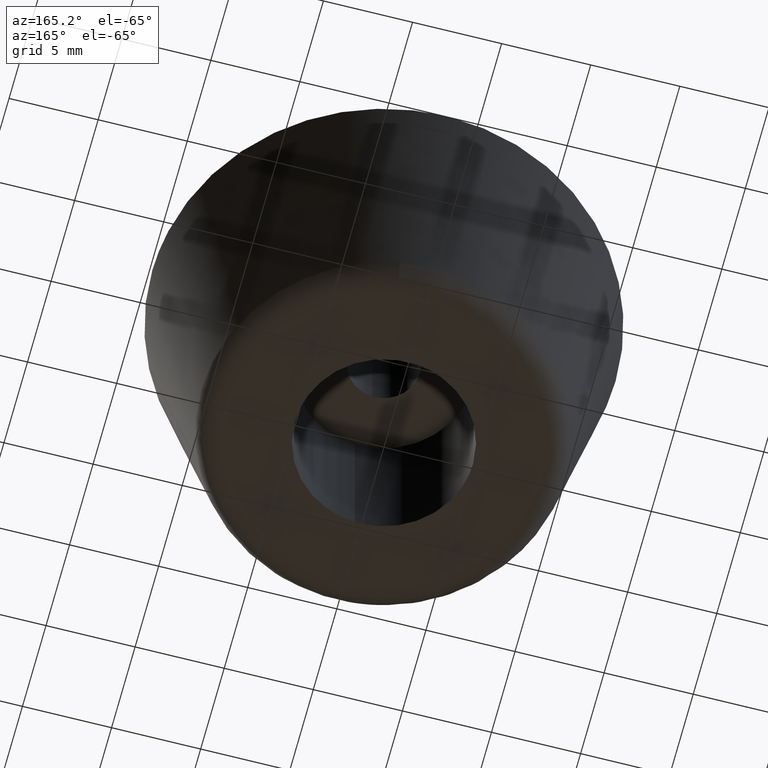
[diagram: clean part render]
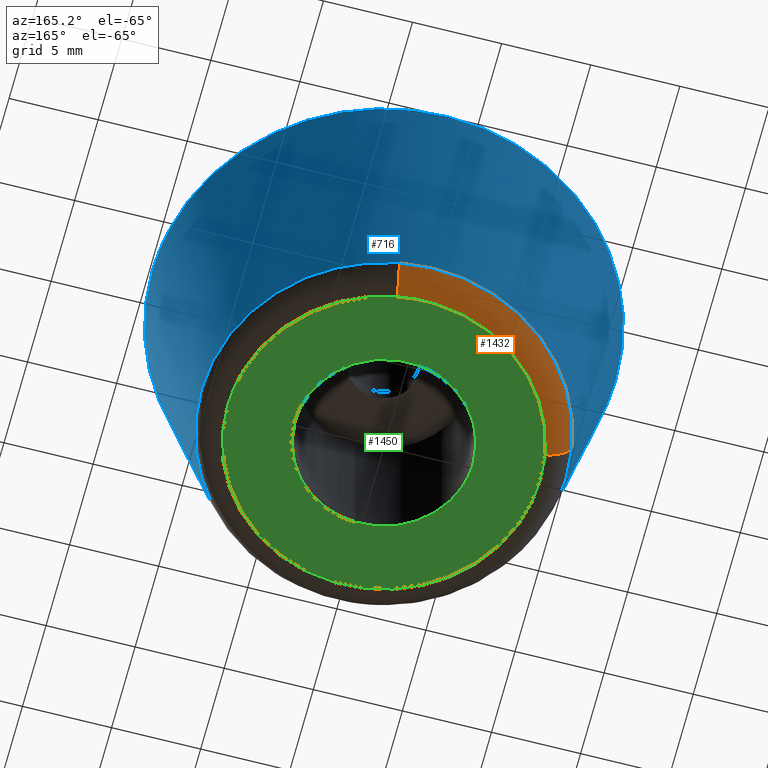
[diagram: same view with three faces highlighted in distinct colors, each labeled with its STEP entity id]
A machine part, auxiliary view with three faces highlighted in distinct colors.
Their STEP definitions:

[orange] entity #1432 — the highlighted face is a freeform B-spline surface patch.
#669=CARTESIAN_POINT('',(1.792434927976787,10.083086621414539,1.205825432428979));
#670=VERTEX_POINT('',#669);
#684=CARTESIAN_POINT('',(-10.083086621414539,1.792434927976787,1.205825432428979));
#685=VERTEX_POINT('',#684);
#686=CARTESIAN_POINT('',(-10.083086621414539,1.792434927976787,1.205825432428979));
#687=CARTESIAN_POINT('',(-8.581185610234368,10.241165000000002,1.205826000000000));
#688=CARTESIAN_POINT('',(0.0,10.241165000000001,1.205826000000000));
#689=CARTESIAN_POINT('',(0.903188086292772,10.241165000000001,1.205826000000000));
#690=CARTESIAN_POINT('',(1.792434927976787,10.083086621414539,1.205825432428979));
#698=(BOUNDED_CURVE()B_SPLINE_CURVE(2,(#686,#687,#688,#689,#690),.UNSPECIFIED.,.F.,.U.)B_SPLINE_CURVE_WITH_KNOTS((3,2,3),(0.030081663205693,0.250000000000000,0.280081663205693),.UNSPECIFIED.)CURVE()GEOMETRIC_REPRESENTATION_ITEM()RATIONAL_B_SPLINE_CURVE((0.937995589608244,0.742349641840858,1.0,0.964757139345690,0.937995589608244))REPRESENTATION_ITEM(''));
#699=EDGE_CURVE('',#685,#670,#698,.T.);
#1312=CARTESIAN_POINT('',(1.535003684122274,8.634918676224169,-9.869064E-014));
#1313=VERTEX_POINT('',#1312);
#1329=CARTESIAN_POINT('',(1.792434927976787,10.083086621414539,1.205825432428979));
#1330=CARTESIAN_POINT('',(1.750227965391735,9.845643329852724,3.426188E-009));
#1331=CARTESIAN_POINT('',(1.535003684122275,8.634918676224169,-9.869064E-014));
#1339=(BOUNDED_CURVE()B_SPLINE_CURVE(2,(#1329,#1330,#1331),.UNSPECIFIED.,.F.,.U.)B_SPLINE_CURVE_WITH_KNOTS((3,3),(-1.697274511608155,-0.292867638342641),.UNSPECIFIED.)CURVE()GEOMETRIC_REPRESENTATION_ITEM()RATIONAL_B_SPLINE_CURVE((0.894230889587813,0.692647608290811,0.897080811284892))REPRESENTATION_ITEM(''));
#1340=EDGE_CURVE('',#670,#1313,#1339,.T.);
#1347=CARTESIAN_POINT('',(-8.634918676224167,1.535003684122275,-9.948932E-014));
#1348=VERTEX_POINT('',#1347);
#1349=CARTESIAN_POINT('',(-10.083086621414539,1.792434927976787,1.205825432428979));
#1350=CARTESIAN_POINT('',(-9.845643329852720,1.750227965391736,3.426185E-009));
#1351=CARTESIAN_POINT('',(-8.634918676224167,1.535003684122275,-9.948932E-014));
#1359=(BOUNDED_CURVE()B_SPLINE_CURVE(2,(#1349,#1350,#1351),.UNSPECIFIED.,.F.,.U.)B_SPLINE_CURVE_WITH_KNOTS((3,3),(-1.697274511608155,-0.292867638342639),.UNSPECIFIED.)CURVE()GEOMETRIC_REPRESENTATION_ITEM()RATIONAL_B_SPLINE_CURVE((0.894230889587813,0.692647608290810,0.897080811284893))REPRESENTATION_ITEM(''));
#1360=EDGE_CURVE('',#685,#1348,#1359,.T.);
#1395=CARTESIAN_POINT('',(-10.098390118165488,1.795160628129167,1.298580781430022));
#1396=CARTESIAN_POINT('',(-8.303229490036324,11.893550746294657,1.298580781430021));
#1397=CARTESIAN_POINT('',(1.795160628129166,10.098390118165488,1.298580781430022));
#1398=CARTESIAN_POINT('',(-9.913901765287305,1.762364685057057,-0.084234275670708));
#1399=CARTESIAN_POINT('',(-8.151537080230250,11.676266450344363,-0.084234275670708));
#1400=CARTESIAN_POINT('',(1.762364685057056,9.913901765287305,-0.084234275670708));
#1401=CARTESIAN_POINT('',(-8.542671347608852,1.518605152190380,0.002929020183568));
#1402=CARTESIAN_POINT('',(-7.024066195418473,10.061276499799233,0.002929020183568));
#1403=CARTESIAN_POINT('',(1.518605152190380,8.542671347608852,0.002929020183568));
#1411=(BOUNDED_SURFACE()B_SPLINE_SURFACE(2,2,((#1395,#1398,#1401),(#1396,#1399,#1402),(#1397,#1400,#1403)),.UNSPECIFIED.,.F.,.F.,.U.)B_SPLINE_SURFACE_WITH_KNOTS((3,3),(3,3),(0.0,16.993872308318959),(0.0,2.359355043066953),.UNSPECIFIED.)GEOMETRIC_REPRESENTATION_ITEM()RATIONAL_B_SPLINE_SURFACE(((0.915382094769839,0.671354004922475,0.918516813981463),(0.647272886588500,0.474718969457429,0.649489467800155),(0.915382094769839,0.671354004922475,0.918516813981463)))REPRESENTATION_ITEM('')SURFACE());
#1412=CARTESIAN_POINT('',(-8.634918676224167,1.535003684122275,-9.948932E-014));
#1413=CARTESIAN_POINT('',(-7.348722741817030,8.770294000000000,-9.947598E-014));
#1414=CARTESIAN_POINT('',(0.0,8.770294000000000,-9.947598E-014));
#1415=CARTESIAN_POINT('',(0.773471364656526,8.770294000000000,-9.947598E-014));
#1416=CARTESIAN_POINT('',(1.535003684122274,8.634918676224169,-9.869064E-014));
#1424=(BOUNDED_CURVE()B_SPLINE_CURVE(2,(#1412,#1413,#1414,#1415,#1416),.UNSPECIFIED.,.F.,.U.)B_SPLINE_CURVE_WITH_KNOTS((3,2,3),(0.030081746791301,0.250000000000000,0.280081746791301),.UNSPECIFIED.)CURVE()GEOMETRIC_REPRESENTATION_ITEM()RATIONAL_B_SPLINE_CURVE((0.937995440887782,0.742349739767489,1.0,0.964757041419058,0.937995440887782))REPRESENTATION_ITEM(''));
#1425=EDGE_CURVE('',#1348,#1313,#1424,.T.);
#1426=ORIENTED_EDGE('',*,*,#1425,.F.);
#1427=ORIENTED_EDGE('',*,*,#1360,.F.);
#1428=ORIENTED_EDGE('',*,*,#699,.T.);
#1429=ORIENTED_EDGE('',*,*,#1340,.T.);
#1430=EDGE_LOOP('',(#1426,#1427,#1428,#1429));
#1431=FACE_OUTER_BOUND('',#1430,.T.);
#1432=ADVANCED_FACE('',(#1431),#1411,.T.);

[blue] entity #716 — the highlighted face is a freeform B-spline surface patch.
#515=CARTESIAN_POINT('',(0.803503832522441,-10.209594695141870,1.205821530488537));
#516=VERTEX_POINT('',#515);
#517=CARTESIAN_POINT('',(-9.522895761693491,-3.767744883117235,1.205822249237394));
#518=VERTEX_POINT('',#517);
#534=CARTESIAN_POINT('',(1.019960730702716,-12.959925147633779,14.999996100865930));
#535=VERTEX_POINT('',#534);
#536=CARTESIAN_POINT('',(0.803503832522441,-10.209594695141870,1.205821530488537));
#537=CARTESIAN_POINT('',(1.019960730702716,-12.959925147633779,14.999996100865930));
#538=QUASI_UNIFORM_CURVE('',1,(#536,#537),.UNSPECIFIED.,.F.,.U.);
#539=EDGE_CURVE('',#516,#535,#538,.T.);
#541=CARTESIAN_POINT('',(-12.088238353496781,-4.782726349463784,14.999995735543790));
#542=VERTEX_POINT('',#541);
#558=CARTESIAN_POINT('',(-9.522895761693491,-3.767744883117235,1.205822249237394));
#559=CARTESIAN_POINT('',(-12.088238353496781,-4.782726349463784,14.999995735543790));
#560=QUASI_UNIFORM_CURVE('',1,(#558,#559),.UNSPECIFIED.,.F.,.U.);
#561=EDGE_CURVE('',#518,#542,#560,.T.);
#566=CARTESIAN_POINT('',(0.798101143486724,-10.140836529317379,0.860971068239703));
#567=CARTESIAN_POINT('',(10.938937672804100,-9.342735385830652,0.860971068239703));
#568=CARTESIAN_POINT('',(10.140836529317379,0.798101143486724,0.860971068239703));
#569=CARTESIAN_POINT('',(9.342735385830652,10.938937672804100,0.860971068239703));
#570=CARTESIAN_POINT('',(-0.798101143486724,10.140836529317379,0.860971068239703));
#571=CARTESIAN_POINT('',(-10.938937672804100,9.342735385830652,0.860971068239703));
#572=CARTESIAN_POINT('',(-10.140836529317379,-0.798101143486724,0.860971068239703));
#573=CARTESIAN_POINT('',(-10.020944893782833,-2.321468810743471,0.860971068239703));
#574=CARTESIAN_POINT('',(-9.458761279695821,-3.742374380430099,0.860971068239703));
#575=CARTESIAN_POINT('',(1.025514921986374,-13.030402558760990,15.353475723294009));
#576=CARTESIAN_POINT('',(14.055917480747365,-12.004887636774617,15.353475723294013));
#577=CARTESIAN_POINT('',(13.030402558760990,1.025514921986374,15.353475723294009));
#578=CARTESIAN_POINT('',(12.004887636774617,14.055917480747365,15.353475723294013));
#579=CARTESIAN_POINT('',(-1.025514921986374,13.030402558760990,15.353475723294009));
#580=CARTESIAN_POINT('',(-14.055917480747365,12.004887636774617,15.353475723294013));
#581=CARTESIAN_POINT('',(-13.030402558760990,-1.025514921986374,15.353475723294009));
#582=CARTESIAN_POINT('',(-12.876348574168407,-2.982956390643230,15.353475723294006));
#583=CARTESIAN_POINT('',(-12.153974361516937,-4.808739847212635,15.353475723294007));
#591=(BOUNDED_SURFACE()B_SPLINE_SURFACE(2,1,((#566,#575),(#567,#576),(#568,#577),(#569,#578),(#570,#579),(#571,#580),(#572,#581),(#573,#582),(#574,#583)),.UNSPECIFIED.,.F.,.F.,.U.)B_SPLINE_SURFACE_WITH_KNOTS((3,2,2,2,3),(2,2),(0.0,21.656236802738729,43.312473605477450,64.968710408216182,69.299957768763932),(0.0,14.779512848600151),.UNSPECIFIED.)GEOMETRIC_REPRESENTATION_ITEM()RATIONAL_B_SPLINE_SURFACE(((1.0,1.0),(0.707106781186548,0.707106781186548),(1.0,1.0),(0.707106781186548,0.707106781186548),(1.0,1.0),(0.707106781186548,0.707106781186548),(1.0,1.0),(0.941421356237310,0.941421356237310),(0.906274169979695,0.906274169979695)))REPRESENTATION_ITEM('')SURFACE());
#592=CARTESIAN_POINT('',(-10.241165000000001,0.0,1.205826000000000));
#593=VERTEX_POINT('',#592);
#594=CARTESIAN_POINT('',(-9.522895761693491,-3.767744883117235,1.205822249237394));
#595=CARTESIAN_POINT('',(-10.241164651229465,-1.952336426630331,1.205824124618697));
#596=CARTESIAN_POINT('',(-10.241165000000001,0.0,1.205826000000000));
#604=(BOUNDED_CURVE()B_SPLINE_CURVE(2,(#594,#595,#596),.UNSPECIFIED.,.F.,.U.)B_SPLINE_CURVE_WITH_KNOTS((3,3),(0.937532612952534,1.0),.UNSPECIFIED.)CURVE()GEOMETRIC_REPRESENTATION_ITEM()RATIONAL_B_SPLINE_CURVE((0.890203261364250,0.926814903747208,1.0))REPRESENTATION_ITEM(''));
#605=EDGE_CURVE('',#518,#593,#604,.T.);
#606=ORIENTED_EDGE('',*,*,#605,.F.);
#607=ORIENTED_EDGE('',*,*,#561,.T.);
#608=CARTESIAN_POINT('',(-13.0,0.0,15.0));
#609=VERTEX_POINT('',#608);
#610=CARTESIAN_POINT('',(-12.088238353496774,-4.782726349463784,14.999995735543795));
#611=CARTESIAN_POINT('',(-12.999999603462925,-2.478270488527844,14.999997867771894));
#612=CARTESIAN_POINT('',(-13.0,0.0,15.0));
#620=(BOUNDED_CURVE()B_SPLINE_CURVE(2,(#610,#611,#612),.UNSPECIFIED.,.F.,.U.)B_SPLINE_CURVE_WITH_KNOTS((3,3),(0.937532605529080,1.0),.UNSPECIFIED.)CURVE()GEOMETRIC_REPRESENTATION_ITEM()RATIONAL_B_SPLINE_CURVE((0.890203252662594,0.926814895050091,1.0))REPRESENTATION_ITEM(''));
#621=EDGE_CURVE('',#542,#609,#620,.T.);
#622=ORIENTED_EDGE('',*,*,#621,.T.);
#623=CARTESIAN_POINT('',(13.0,0.0,15.0));
#624=VERTEX_POINT('',#623);
#625=CARTESIAN_POINT('',(-13.0,0.0,15.0));
#626=CARTESIAN_POINT('',(-13.0,13.0,14.999999999999996));
#627=CARTESIAN_POINT('',(0.0,13.0,15.0));
#628=CARTESIAN_POINT('',(13.0,13.0,14.999999999999996));
#629=CARTESIAN_POINT('',(13.0,0.0,15.0));
#637=(BOUNDED_CURVE()B_SPLINE_CURVE(2,(#625,#626,#627,#628,#629),.UNSPECIFIED.,.F.,.U.)B_SPLINE_CURVE_WITH_KNOTS((3,2,3),(0.0,0.250000000000000,0.500000000000000),.UNSPECIFIED.)CURVE()GEOMETRIC_REPRESENTATION_ITEM()RATIONAL_B_SPLINE_CURVE((1.0,0.707106781186547,1.0,0.707106781186547,1.0))REPRESENTATION_ITEM(''));
#638=EDGE_CURVE('',#609,#624,#637,.T.);
#639=ORIENTED_EDGE('',*,*,#638,.T.);
#640=CARTESIAN_POINT('',(13.0,0.0,15.0));
#641=CARTESIAN_POINT('',(12.999999969407883,-12.017082934606062,14.999998050432970));
#642=CARTESIAN_POINT('',(1.019960730702716,-12.959925147633777,14.999996100865921));
#650=(BOUNDED_CURVE()B_SPLINE_CURVE(2,(#640,#641,#642),.UNSPECIFIED.,.F.,.U.)B_SPLINE_CURVE_WITH_KNOTS((3,3),(0.500000000000000,0.736331399210031),.UNSPECIFIED.)CURVE()GEOMETRIC_REPRESENTATION_ITEM()RATIONAL_B_SPLINE_CURVE((1.0,0.723120543114748,0.969723561895137))REPRESENTATION_ITEM(''));
#651=EDGE_CURVE('',#624,#535,#650,.T.);
#652=ORIENTED_EDGE('',*,*,#651,.T.);
#653=ORIENTED_EDGE('',*,*,#539,.F.);
#654=CARTESIAN_POINT('',(10.241165000000001,0.0,1.205826000000000));
#655=VERTEX_POINT('',#654);
#656=CARTESIAN_POINT('',(10.241165000000001,0.0,1.205826000000000));
#657=CARTESIAN_POINT('',(10.241164964932851,-9.466843142405997,1.205823765244268));
#658=CARTESIAN_POINT('',(0.803503832522441,-10.209594695141874,1.205821530488537));
#666=(BOUNDED_CURVE()B_SPLINE_CURVE(2,(#656,#657,#658),.UNSPECIFIED.,.F.,.U.)B_SPLINE_CURVE_WITH_KNOTS((3,3),(0.500000000000000,0.736331445743965),.UNSPECIFIED.)CURVE()GEOMETRIC_REPRESENTATION_ITEM()RATIONAL_B_SPLINE_CURVE((1.0,0.723120488596853,0.969723659008014))REPRESENTATION_ITEM(''));
#667=EDGE_CURVE('',#655,#516,#666,.T.);
#668=ORIENTED_EDGE('',*,*,#667,.F.);
#669=CARTESIAN_POINT('',(1.792434927976787,10.083086621414539,1.205825432428979));
#670=VERTEX_POINT('',#669);
#671=CARTESIAN_POINT('',(1.792434927976787,10.083086621414539,1.205825432428979));
#672=CARTESIAN_POINT('',(10.241165000000002,8.581185610234368,1.205826000000000));
#673=CARTESIAN_POINT('',(10.241165000000001,0.0,1.205826000000000));
#681=(BOUNDED_CURVE()B_SPLINE_CURVE(2,(#671,#672,#673),.UNSPECIFIED.,.F.,.U.)B_SPLINE_CURVE_WITH_KNOTS((3,3),(0.280081663205693,0.500000000000000),.UNSPECIFIED.)CURVE()GEOMETRIC_REPRESENTATION_ITEM()RATIONAL_B_SPLINE_CURVE((0.937995589608244,0.742349641840858,1.0))REPRESENTATION_ITEM(''));
#682=EDGE_CURVE('',#670,#655,#681,.T.);
#683=ORIENTED_EDGE('',*,*,#682,.F.);
#684=CARTESIAN_POINT('',(-10.083086621414539,1.792434927976787,1.205825432428979));
#685=VERTEX_POINT('',#684);
#686=CARTESIAN_POINT('',(-10.083086621414539,1.792434927976787,1.205825432428979));
#687=CARTESIAN_POINT('',(-8.581185610234368,10.241165000000002,1.205826000000000));
#688=CARTESIAN_POINT('',(0.0,10.241165000000001,1.205826000000000));
#689=CARTESIAN_POINT('',(0.903188086292772,10.241165000000001,1.205826000000000));
#690=CARTESIAN_POINT('',(1.792434927976787,10.083086621414539,1.205825432428979));
#698=(BOUNDED_CURVE()B_SPLINE_CURVE(2,(#686,#687,#688,#689,#690),.UNSPECIFIED.,.F.,.U.)B_SPLINE_CURVE_WITH_KNOTS((3,2,3),(0.030081663205693,0.250000000000000,0.280081663205693),.UNSPECIFIED.)CURVE()GEOMETRIC_REPRESENTATION_ITEM()RATIONAL_B_SPLINE_CURVE((0.937995589608244,0.742349641840858,1.0,0.964757139345690,0.937995589608244))REPRESENTATION_ITEM(''));
#699=EDGE_CURVE('',#685,#670,#698,.T.);
#700=ORIENTED_EDGE('',*,*,#699,.F.);
#701=CARTESIAN_POINT('',(-10.241165000000001,0.0,1.205826000000000));
#702=CARTESIAN_POINT('',(-10.241164999999999,0.903188086292771,1.205826000000000));
#703=CARTESIAN_POINT('',(-10.083086621414539,1.792434927976787,1.205825432428979));
#711=(BOUNDED_CURVE()B_SPLINE_CURVE(2,(#701,#702,#703),.UNSPECIFIED.,.F.,.U.)B_SPLINE_CURVE_WITH_KNOTS((3,3),(0.0,0.030081663205693),.UNSPECIFIED.)CURVE()GEOMETRIC_REPRESENTATION_ITEM()RATIONAL_B_SPLINE_CURVE((1.0,0.964757139345690,0.937995589608244))REPRESENTATION_ITEM(''));
#712=EDGE_CURVE('',#593,#685,#711,.T.);
#713=ORIENTED_EDGE('',*,*,#712,.F.);
#714=EDGE_LOOP('',(#606,#607,#622,#639,#652,#653,#668,#683,#700,#713));
#715=FACE_OUTER_BOUND('',#714,.T.);
#716=ADVANCED_FACE('',(#715),#591,.T.);

[green] entity #1450 — the highlighted face is a freeform B-spline surface patch.
#1119=CARTESIAN_POINT('',(-0.590164254953731,4.965048454156954,2.889118E-014));
#1120=VERTEX_POINT('',#1119);
#1121=CARTESIAN_POINT('',(5.0,0.0,0.0));
#1122=VERTEX_POINT('',#1121);
#1123=CARTESIAN_POINT('',(-0.590164254953731,4.965048454156954,2.889118E-014));
#1124=CARTESIAN_POINT('',(-0.296117102525392,5.0,0.0));
#1125=CARTESIAN_POINT('',(0.0,5.0,0.0));
#1126=CARTESIAN_POINT('',(5.000000000000001,5.000000000000001,0.0));
#1127=CARTESIAN_POINT('',(5.0,0.0,0.0));
#1135=(BOUNDED_CURVE()B_SPLINE_CURVE(2,(#1123,#1124,#1125,#1126,#1127),.UNSPECIFIED.,.F.,.U.)B_SPLINE_CURVE_WITH_KNOTS((3,2,3),(0.229562709005904,0.250000000000000,0.500000000000000),.UNSPECIFIED.)CURVE()GEOMETRIC_REPRESENTATION_ITEM()RATIONAL_B_SPLINE_CURVE((0.956027215758951,0.976056224227648,1.0,0.707106781186548,1.0))REPRESENTATION_ITEM(''));
#1136=EDGE_CURVE('',#1120,#1122,#1135,.T.);
#1138=CARTESIAN_POINT('',(0.305239861892635,-4.990674165551553,-7.258083E-015));
#1139=VERTEX_POINT('',#1138);
#1140=CARTESIAN_POINT('',(5.0,0.0,0.0));
#1141=CARTESIAN_POINT('',(4.999999999999999,-4.703533012145370,0.0));
#1142=CARTESIAN_POINT('',(0.305239861892635,-4.990674165551553,-7.258083E-015));
#1150=(BOUNDED_CURVE()B_SPLINE_CURVE(2,(#1140,#1141,#1142),.UNSPECIFIED.,.F.,.U.)B_SPLINE_CURVE_WITH_KNOTS((3,3),(0.500000000000000,0.739333060285851),.UNSPECIFIED.)CURVE()GEOMETRIC_REPRESENTATION_ITEM()RATIONAL_B_SPLINE_CURVE((1.0,0.719603878417612,0.976072251799996))REPRESENTATION_ITEM(''));
#1151=EDGE_CURVE('',#1122,#1139,#1150,.T.);
#1218=CARTESIAN_POINT('',(-5.0,0.0,0.0));
#1219=VERTEX_POINT('',#1218);
#1220=CARTESIAN_POINT('',(-5.0,0.0,0.0));
#1221=CARTESIAN_POINT('',(-5.000000000000001,4.440878861261977,0.0));
#1222=CARTESIAN_POINT('',(-0.590164254953731,4.965048454156953,2.889118E-014));
#1230=(BOUNDED_CURVE()B_SPLINE_CURVE(2,(#1220,#1221,#1222),.UNSPECIFIED.,.F.,.U.)B_SPLINE_CURVE_WITH_KNOTS((3,3),(0.0,0.229562709005904),.UNSPECIFIED.)CURVE()GEOMETRIC_REPRESENTATION_ITEM()RATIONAL_B_SPLINE_CURVE((1.0,0.731050556958900,0.956027215758951))REPRESENTATION_ITEM(''));
#1231=EDGE_CURVE('',#1219,#1120,#1230,.T.);
#1265=CARTESIAN_POINT('',(0.305239861892635,-4.990674165551553,-7.258083E-015));
#1266=CARTESIAN_POINT('',(0.152762394626554,-5.000000000000001,0.0));
#1267=CARTESIAN_POINT('',(0.0,-5.0,0.0));
#1268=CARTESIAN_POINT('',(-5.000000000000001,-5.000000000000001,0.0));
#1269=CARTESIAN_POINT('',(-5.0,0.0,0.0));
#1277=(BOUNDED_CURVE()B_SPLINE_CURVE(2,(#1265,#1266,#1267,#1268,#1269),.UNSPECIFIED.,.F.,.U.)B_SPLINE_CURVE_WITH_KNOTS((3,2,3),(0.739333060285851,0.750000000000000,1.0),.UNSPECIFIED.)CURVE()GEOMETRIC_REPRESENTATION_ITEM()RATIONAL_B_SPLINE_CURVE((0.976072251799996,0.987502902768935,1.0,0.707106781186548,1.0))REPRESENTATION_ITEM(''));
#1278=EDGE_CURVE('',#1139,#1219,#1277,.T.);
#1312=CARTESIAN_POINT('',(1.535003684122274,8.634918676224169,-9.869064E-014));
#1313=VERTEX_POINT('',#1312);
#1314=CARTESIAN_POINT('',(8.770294000000000,0.0,0.0));
#1315=VERTEX_POINT('',#1314);
#1316=CARTESIAN_POINT('',(1.535003684122275,8.634918676224167,-9.869064E-014));
#1317=CARTESIAN_POINT('',(8.770294000000000,7.348722741817030,-8.335199E-014));
#1318=CARTESIAN_POINT('',(8.770294000000000,0.0,0.0));
#1326=(BOUNDED_CURVE()B_SPLINE_CURVE(2,(#1316,#1317,#1318),.UNSPECIFIED.,.F.,.U.)B_SPLINE_CURVE_WITH_KNOTS((3,3),(0.280081746791301,0.500000000000000),.UNSPECIFIED.)CURVE()GEOMETRIC_REPRESENTATION_ITEM()RATIONAL_B_SPLINE_CURVE((0.937995440887782,0.742349739767489,1.0))REPRESENTATION_ITEM(''));
#1327=EDGE_CURVE('',#1313,#1315,#1326,.T.);
#1347=CARTESIAN_POINT('',(-8.634918676224167,1.535003684122275,-9.948932E-014));
#1348=VERTEX_POINT('',#1347);
#1362=CARTESIAN_POINT('',(-8.770294000000000,0.0,-9.947598E-014));
#1363=VERTEX_POINT('',#1362);
#1364=CARTESIAN_POINT('',(-8.770294000000000,0.0,-9.947598E-014));
#1365=CARTESIAN_POINT('',(-8.770294000000000,0.773471364656523,-9.947598E-014));
#1366=CARTESIAN_POINT('',(-8.634918676224167,1.535003684122275,-9.948932E-014));
#1374=(BOUNDED_CURVE()B_SPLINE_CURVE(2,(#1364,#1365,#1366),.UNSPECIFIED.,.F.,.U.)B_SPLINE_CURVE_WITH_KNOTS((3,3),(0.0,0.030081746791301),.UNSPECIFIED.)CURVE()GEOMETRIC_REPRESENTATION_ITEM()RATIONAL_B_SPLINE_CURVE((1.0,0.964757041419058,0.937995440887782))REPRESENTATION_ITEM(''));
#1375=EDGE_CURVE('',#1363,#1348,#1374,.T.);
#1377=CARTESIAN_POINT('',(8.770294000000000,0.0,0.0));
#1378=CARTESIAN_POINT('',(8.770294000000000,-8.770294000000000,-9.947598E-014));
#1379=CARTESIAN_POINT('',(0.0,-8.770294000000000,-9.947598E-014));
#1380=CARTESIAN_POINT('',(-8.770294000000000,-8.770294000000000,-9.947598E-014));
#1381=CARTESIAN_POINT('',(-8.770294000000000,0.0,-9.947598E-014));
#1389=(BOUNDED_CURVE()B_SPLINE_CURVE(2,(#1377,#1378,#1379,#1380,#1381),.UNSPECIFIED.,.F.,.U.)B_SPLINE_CURVE_WITH_KNOTS((3,2,3),(0.500000000000000,0.750000000000000,1.0),.UNSPECIFIED.)CURVE()GEOMETRIC_REPRESENTATION_ITEM()RATIONAL_B_SPLINE_CURVE((1.0,0.707106781186548,1.0,0.707106781186548,1.0))REPRESENTATION_ITEM(''));
#1390=EDGE_CURVE('',#1315,#1363,#1389,.T.);
#1412=CARTESIAN_POINT('',(-8.634918676224167,1.535003684122275,-9.948932E-014));
#1413=CARTESIAN_POINT('',(-7.348722741817030,8.770294000000000,-9.947598E-014));
#1414=CARTESIAN_POINT('',(0.0,8.770294000000000,-9.947598E-014));
#1415=CARTESIAN_POINT('',(0.773471364656526,8.770294000000000,-9.947598E-014));
#1416=CARTESIAN_POINT('',(1.535003684122274,8.634918676224169,-9.869064E-014));
#1424=(BOUNDED_CURVE()B_SPLINE_CURVE(2,(#1412,#1413,#1414,#1415,#1416),.UNSPECIFIED.,.F.,.U.)B_SPLINE_CURVE_WITH_KNOTS((3,2,3),(0.030081746791301,0.250000000000000,0.280081746791301),.UNSPECIFIED.)CURVE()GEOMETRIC_REPRESENTATION_ITEM()RATIONAL_B_SPLINE_CURVE((0.937995440887782,0.742349739767489,1.0,0.964757041419058,0.937995440887782))REPRESENTATION_ITEM(''));
#1425=EDGE_CURVE('',#1348,#1313,#1424,.T.);
#1433=CARTESIAN_POINT('',(-9.646446665919914,-9.646368840829036,-4.973799E-014));
#1434=CARTESIAN_POINT('',(9.646446822744993,-9.646368840829036,-4.973799E-014));
#1435=CARTESIAN_POINT('',(-9.646446665919914,9.644810938288009,-4.973799E-014));
#1436=CARTESIAN_POINT('',(9.646446822744993,9.644810938288009,-4.973799E-014));
#1437=B_SPLINE_SURFACE_WITH_KNOTS('',1,1,((#1433,#1435),(#1434,#1436)),.UNSPECIFIED.,.F.,.F.,.U.,(2,2),(2,2),(0.0,19.292893488664909),(0.0,19.291179779117041),.UNSPECIFIED.);
#1438=ORIENTED_EDGE('',*,*,#1375,.T.);
#1439=ORIENTED_EDGE('',*,*,#1425,.T.);
#1440=ORIENTED_EDGE('',*,*,#1327,.T.);
#1441=ORIENTED_EDGE('',*,*,#1390,.T.);
#1442=EDGE_LOOP('',(#1438,#1439,#1440,#1441));
#1443=FACE_OUTER_BOUND('',#1442,.T.);
#1444=ORIENTED_EDGE('',*,*,#1151,.F.);
#1445=ORIENTED_EDGE('',*,*,#1136,.F.);
#1446=ORIENTED_EDGE('',*,*,#1231,.F.);
#1447=ORIENTED_EDGE('',*,*,#1278,.F.);
#1448=EDGE_LOOP('',(#1444,#1445,#1446,#1447));
#1449=FACE_BOUND('',#1448,.T.);
#1450=ADVANCED_FACE('',(#1443,#1449),#1437,.F.);